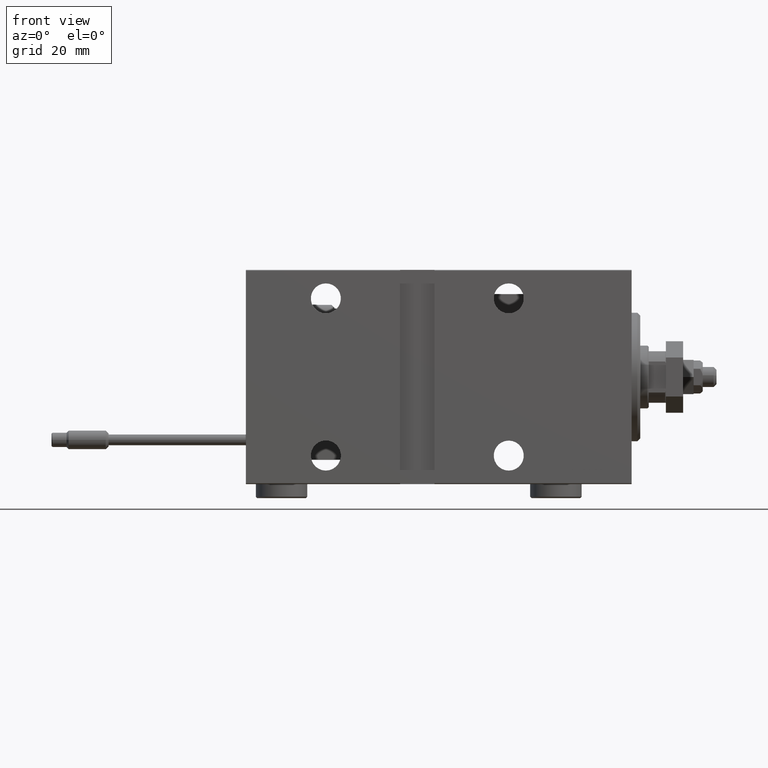
[diagram: clean part render]
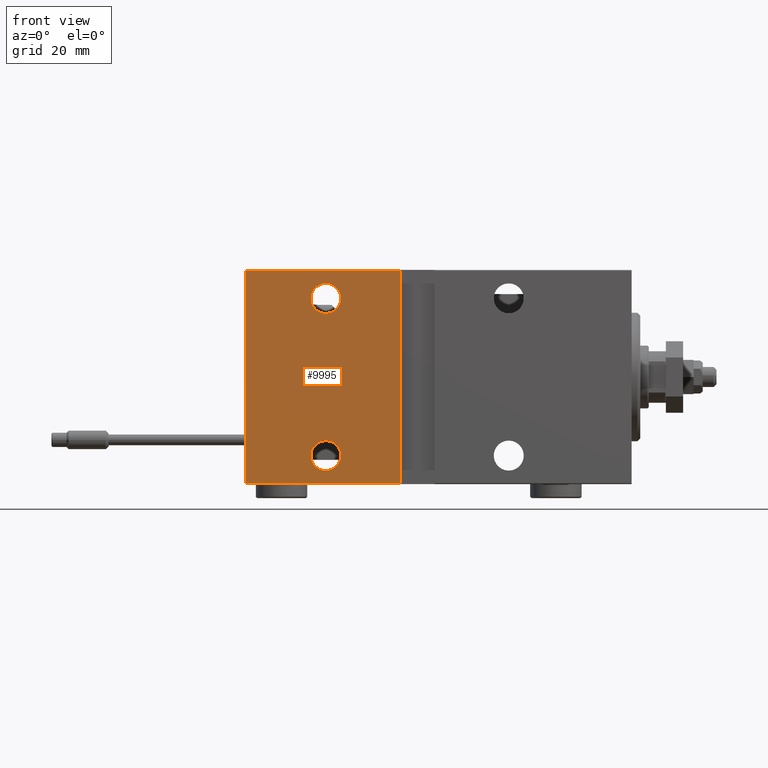
[diagram: same view with one face highlighted and labeled with its STEP entity id]
A machine part, front view. The second image highlights one B-rep face of the part: STEP entity #9995.
In plain terms, the highlighted planar face has unit normal (-0, 1, -0).
Its self-contained STEP definition (entity closure, byte-faithful):
#724 = DIRECTION ( 'NONE',  ( 0.000000000000000000, 0.000000000000000000, -1.000000000000000000 ) ) ;
#2807 = CARTESIAN_POINT ( 'NONE',  ( 107.0000000000000142, 27.50000000000000355, -22.25000000000000355 ) ) ;
#2860 = EDGE_CURVE ( 'NONE', #12902, #20427, #35967, .T. ) ;
#4096 = CARTESIAN_POINT ( 'NONE',  ( 81.00000000000000000, 27.49999999999999645, 37.20000000000003126 ) ) ;
#4411 = CARTESIAN_POINT ( 'NONE',  ( 135.0000000000000000, 27.50000000000000355, -37.50000000000000711 ) ) ;
#6633 = DIRECTION ( 'NONE',  ( 0.000000000000000000, -1.000000000000000000, -9.251858538542970348E-17 ) ) ;
#6814 = EDGE_CURVE ( 'NONE', #14603, #28210, #20754, .T. ) ;
#8068 = VECTOR ( 'NONE', #48202, 1000.000000000000000 ) ;
#9995 = ADVANCED_FACE ( 'NONE', ( #45982, #37931, #18640 ), #46242, .F. ) ;
#10287 = DIRECTION ( 'NONE',  ( 0.000000000000000000, 9.251858538542970348E-17, -1.000000000000000000 ) ) ;
#11336 = CIRCLE ( 'NONE', #16332, 5.250000000000000888 ) ;
#11856 = EDGE_LOOP ( 'NONE', ( #21063, #24494 ) ) ;
#12411 = AXIS2_PLACEMENT_3D ( 'NONE', #28893, #17672, #724 ) ;
#12457 = CARTESIAN_POINT ( 'NONE',  ( 135.0000000000000000, 27.49999999999999645, 37.20000000000002416 ) ) ;
#12570 = DIRECTION ( 'NONE',  ( 0.000000000000000000, -1.000000000000000000, -9.251858538542970348E-17 ) ) ;
#12616 = CIRCLE ( 'NONE', #34272, 5.250000000000000888 ) ;
#12888 = LINE ( 'NONE', #43198, #19546 ) ;
#12902 = VERTEX_POINT ( 'NONE', #13196 ) ;
#13196 = CARTESIAN_POINT ( 'NONE',  ( 135.0000000000000000, 27.50000000000000355, -37.19999999999999574 ) ) ;
#14603 = VERTEX_POINT ( 'NONE', #49797 ) ;
#15835 = EDGE_CURVE ( 'NONE', #35634, #28251, #12616, .T. ) ;
#16332 = AXIS2_PLACEMENT_3D ( 'NONE', #30230, #29972, #17987 ) ;
#16380 = DIRECTION ( 'NONE',  ( 0.000000000000000000, -1.000000000000000000, -9.251858538542970348E-17 ) ) ;
#16837 = ORIENTED_EDGE ( 'NONE', *, *, #24236, .T. ) ;
#16990 = EDGE_CURVE ( 'NONE', #28210, #14603, #41782, .T. ) ;
#17614 = CARTESIAN_POINT ( 'NONE',  ( 135.0000000000000000, 27.50000000000000355, -37.50000000000000711 ) ) ;
#17672 = DIRECTION ( 'NONE',  ( 0.000000000000000000, -1.000000000000000000, -9.251858538542970348E-17 ) ) ;
#17987 = DIRECTION ( 'NONE',  ( 0.000000000000000000, 0.000000000000000000, -1.000000000000000000 ) ) ;
#18640 = FACE_OUTER_BOUND ( 'NONE', #47597, .T. ) ;
#19546 = VECTOR ( 'NONE', #39559, 1000.000000000000000 ) ;
#19917 = AXIS2_PLACEMENT_3D ( 'NONE', #17614, #6633, #10287 ) ;
#20427 = VERTEX_POINT ( 'NONE', #31029 ) ;
#20546 = VECTOR ( 'NONE', #50118, 1000.000000000000000 ) ;
#20754 = CIRCLE ( 'NONE', #12411, 5.250000000000004441 ) ;
#21063 = ORIENTED_EDGE ( 'NONE', *, *, #15835, .T. ) ;
#21763 = CARTESIAN_POINT ( 'NONE',  ( 81.00000000000001421, 27.50000000000000355, -37.50000000000009237 ) ) ;
#22872 = VECTOR ( 'NONE', #47619, 1000.000000000000000 ) ;
#24236 = EDGE_CURVE ( 'NONE', #12902, #44478, #12888, .T. ) ;
#24494 = ORIENTED_EDGE ( 'NONE', *, *, #48726, .T. ) ;
#25973 = AXIS2_PLACEMENT_3D ( 'NONE', #36283, #12570, #44609 ) ;
#27836 = DIRECTION ( 'NONE',  ( 0.000000000000000000, 0.000000000000000000, -1.000000000000000000 ) ) ;
#28210 = VERTEX_POINT ( 'NONE', #38374 ) ;
#28251 = VERTEX_POINT ( 'NONE', #34713 ) ;
#28893 = CARTESIAN_POINT ( 'NONE',  ( 107.0000000000000142, 27.49999999999999645, 27.49999999999999289 ) ) ;
#29972 = DIRECTION ( 'NONE',  ( 0.000000000000000000, -1.000000000000000000, -9.251858538542970348E-17 ) ) ;
#30230 = CARTESIAN_POINT ( 'NONE',  ( 107.0000000000000142, 27.50000000000000355, -27.50000000000000711 ) ) ;
#31029 = CARTESIAN_POINT ( 'NONE',  ( 135.0000000000000000, 27.49999999999999645, 37.20000000000002416 ) ) ;
#33940 = CARTESIAN_POINT ( 'NONE',  ( 81.00000000000001421, 27.50000000000000355, -37.19999999999999574 ) ) ;
#34272 = AXIS2_PLACEMENT_3D ( 'NONE', #39593, #16380, #27836 ) ;
#34713 = CARTESIAN_POINT ( 'NONE',  ( 107.0000000000000142, 27.50000000000000355, -32.75000000000000711 ) ) ;
#35634 = VERTEX_POINT ( 'NONE', #2807 ) ;
#35967 = LINE ( 'NONE', #4411, #8068 ) ;
#35995 = ORIENTED_EDGE ( 'NONE', *, *, #2860, .F. ) ;
#36213 = ORIENTED_EDGE ( 'NONE', *, *, #45190, .T. ) ;
#36283 = CARTESIAN_POINT ( 'NONE',  ( 107.0000000000000142, 27.49999999999999645, 27.49999999999999289 ) ) ;
#37931 = FACE_BOUND ( 'NONE', #47453, .T. ) ;
#38283 = ORIENTED_EDGE ( 'NONE', *, *, #50516, .F. ) ;
#38374 = CARTESIAN_POINT ( 'NONE',  ( 107.0000000000000142, 27.49999999999999645, 22.24999999999998934 ) ) ;
#39559 = DIRECTION ( 'NONE',  ( -1.000000000000000000, 0.000000000000000000, 0.000000000000000000 ) ) ;
#39593 = CARTESIAN_POINT ( 'NONE',  ( 107.0000000000000142, 27.50000000000000355, -27.50000000000000711 ) ) ;
#40652 = ORIENTED_EDGE ( 'NONE', *, *, #6814, .T. ) ;
#41565 = LINE ( 'NONE', #21763, #20546 ) ;
#41782 = CIRCLE ( 'NONE', #25973, 5.250000000000004441 ) ;
#43198 = CARTESIAN_POINT ( 'NONE',  ( 135.0000000000000000, 27.50000000000000355, -37.19999999999999574 ) ) ;
#44478 = VERTEX_POINT ( 'NONE', #33940 ) ;
#44609 = DIRECTION ( 'NONE',  ( 0.000000000000000000, 0.000000000000000000, -1.000000000000000000 ) ) ;
#45190 = EDGE_CURVE ( 'NONE', #45214, #20427, #48390, .T. ) ;
#45214 = VERTEX_POINT ( 'NONE', #4096 ) ;
#45691 = ORIENTED_EDGE ( 'NONE', *, *, #16990, .T. ) ;
#45982 = FACE_BOUND ( 'NONE', #11856, .T. ) ;
#46242 = PLANE ( 'NONE',  #19917 ) ;
#47453 = EDGE_LOOP ( 'NONE', ( #40652, #45691 ) ) ;
#47597 = EDGE_LOOP ( 'NONE', ( #35995, #16837, #38283, #36213 ) ) ;
#47619 = DIRECTION ( 'NONE',  ( 1.000000000000000000, 0.000000000000000000, 0.000000000000000000 ) ) ;
#48202 = DIRECTION ( 'NONE',  ( 0.000000000000000000, -9.251858538542970348E-17, 1.000000000000000000 ) ) ;
#48390 = LINE ( 'NONE', #12457, #22872 ) ;
#48726 = EDGE_CURVE ( 'NONE', #28251, #35634, #11336, .T. ) ;
#49797 = CARTESIAN_POINT ( 'NONE',  ( 107.0000000000000142, 27.49999999999999645, 32.74999999999999289 ) ) ;
#50118 = DIRECTION ( 'NONE',  ( 1.850371707708591851E-16, 9.251858538542959255E-17, -1.000000000000000000 ) ) ;
#50516 = EDGE_CURVE ( 'NONE', #45214, #44478, #41565, .T. ) ;